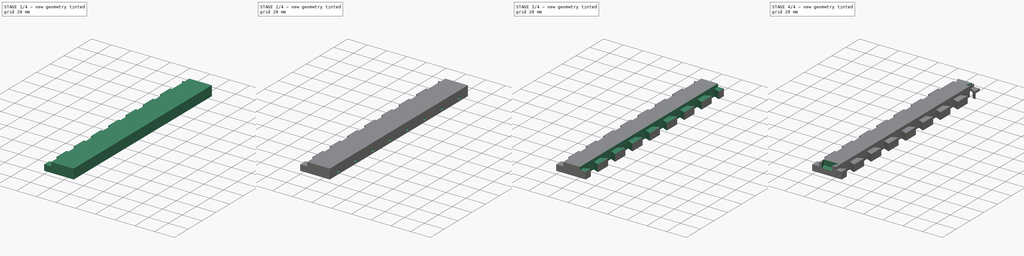
[diagram: build sequence overview — one tinted view per stage of 4, left to right]
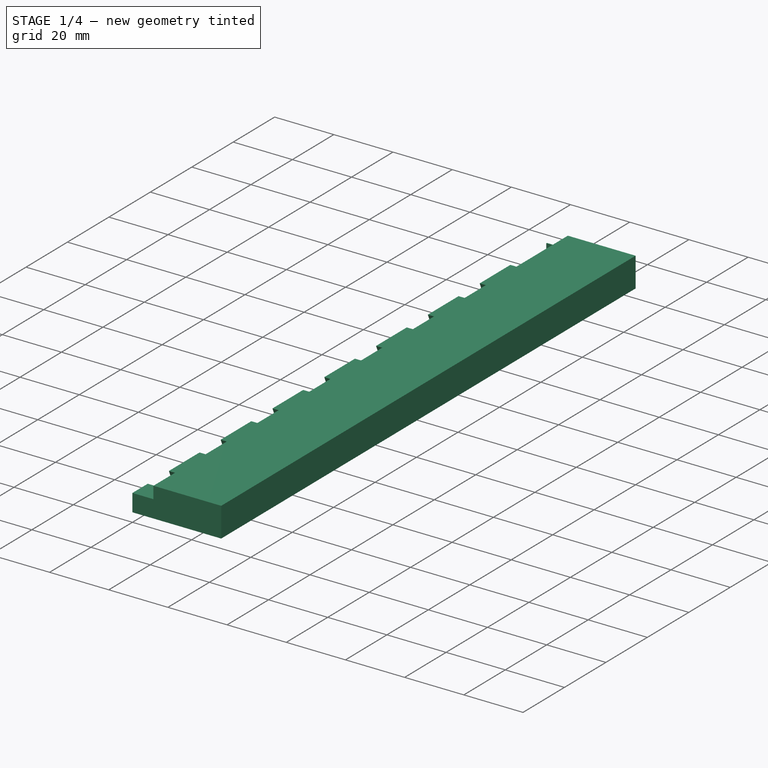
[diagram: stage 1 of 4 — iso view after this stage's code; geometry added in this stage tinted green]
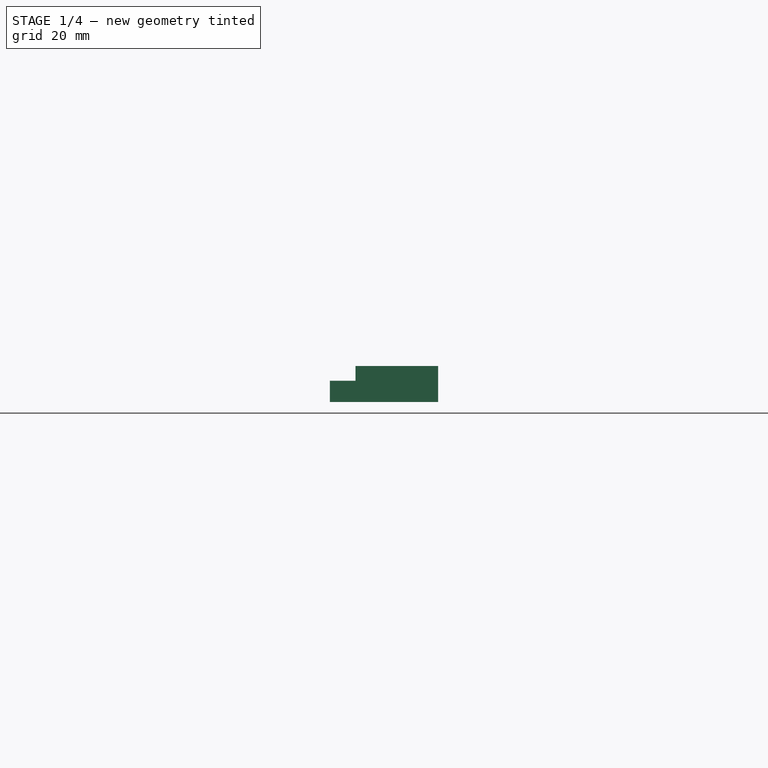
[diagram: stage 1 of 4 — front view after this stage's code; geometry added in this stage tinted green]
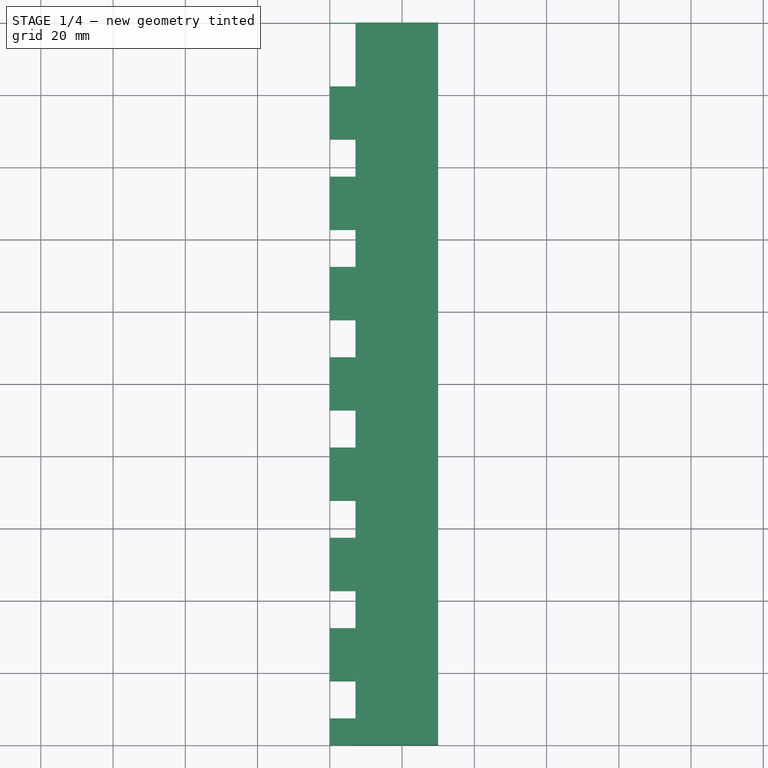
[diagram: stage 1 of 4 — top view after this stage's code; geometry added in this stage tinted green]
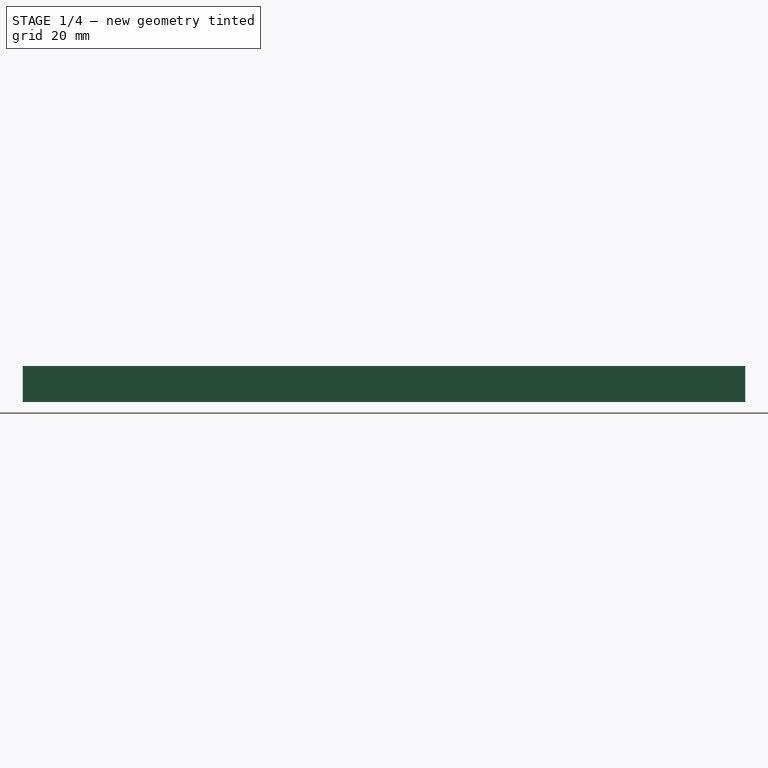
[diagram: stage 1 of 4 — right view after this stage's code; geometry added in this stage tinted green]
FCSTD DOCUMENT  (FreeCAD 0.17R13541 (Git))
Label: base_track_200_v1_1
License: All rights reserved
LicenseURL: http://en.wikipedia.org/wiki/All_rights_reserved
objects: Sketcher::SketchObject×11, PartDesign::Pocket×10, PartDesign::Pad×1, PartDesign::Body×1
note: 34 computed .brp shape members not serialized (recipe doc carries the construction recipe); baked Part::Feature solids carry a one-line shape summary decoded from their .brp

FEATURE [Sketcher::SketchObject] Sketch
  MapMode = 5
  Support = -> [XY_Plane]
  sketch-geometry (4):
    g0: LineSegment StartX=0 StartY=200 StartZ=0 EndX=30 EndY=200 EndZ=0
    g1: LineSegment StartX=30 StartY=200 StartZ=0 EndX=30 EndY=0 EndZ=0
    g2: LineSegment StartX=30 StartY=0 StartZ=0 EndX=0 EndY=0 EndZ=0
    g3: LineSegment StartX=0 StartY=0 StartZ=0 EndX=0 EndY=200 EndZ=0
  constraints (11):
    c: Coincident(g0,g1)
    c: Coincident(g1,g2)
    c: Coincident(g2,g3)
    c: Coincident(g3,g0)
    c: Horizontal(g0)
    c: Horizontal(g2)
    c: Vertical(g1)
    c: Vertical(g3)
    c: Coincident(g2,g-1)
    c: DistanceY(g3,g3) = 200
    c: DistanceX(g2,g2) = 30
FEATURE [PartDesign::Pad] Pad
  Length = 10
  Length2 = 100
  Profile = -> Sketch
  Type = 0
FEATURE [Sketcher::SketchObject] Sketch001
  ExternalGeometry = -> [Pad]
  MapMode = 5
  Placement = pos=(0,0,0) rot=(0.57735,-0.57735,-0.57735;2.0944rad)
  Support = -> [Pad]
  sketch-geometry (32):
    g0: LineSegment StartX=-199.7 StartY=5.9 StartZ=0 EndX=-199.9 EndY=0 EndZ=0
    g1: LineSegment StartX=-199.7 StartY=5.9 StartZ=0 EndX=-182.4 EndY=5.9 EndZ=0
    g2: LineSegment StartX=-182.4 StartY=5.9 StartZ=0 EndX=-179.9 EndY=0 EndZ=0
    g3: LineSegment StartX=-199.9 StartY=0 StartZ=0 EndX=-179.9 EndY=0 EndZ=0
    g4: LineSegment StartX=-167.6 StartY=5.9 StartZ=0 EndX=-170.1 EndY=0 EndZ=0
    g5: LineSegment StartX=-167.6 StartY=5.9 StartZ=0 EndX=-157.4 EndY=5.9 EndZ=0
    g6: LineSegment StartX=-154.9 StartY=0 StartZ=0 EndX=-157.4 EndY=5.9 EndZ=0
    g7: LineSegment StartX=-170.1 StartY=0 StartZ=0 EndX=-154.9 EndY=0 EndZ=0
    g8: LineSegment StartX=-142.6 StartY=5.9 StartZ=0 EndX=-145.1 EndY=0 EndZ=0
    g9: LineSegment StartX=-142.6 StartY=5.9 StartZ=0 EndX=-132.4 EndY=5.9 EndZ=0
    g10: LineSegment StartX=-132.4 StartY=5.9 StartZ=0 EndX=-129.9 EndY=0 EndZ=0
    g11: LineSegment StartX=-145.1 StartY=0 StartZ=0 EndX=-129.9 EndY=0 EndZ=0
    g12: LineSegment StartX=-117.6 StartY=5.9 StartZ=0 EndX=-120.1 EndY=0 EndZ=0
    g13: LineSegment StartX=-117.6 StartY=5.9 StartZ=0 EndX=-107.4 EndY=5.9 EndZ=0
    g14: LineSegment StartX=-104.9 StartY=0 StartZ=0 EndX=-107.4 EndY=5.9 EndZ=0
    g15: LineSegment StartX=-120.1 StartY=0 StartZ=0 EndX=-104.9 EndY=0 EndZ=0
    g16: LineSegment StartX=-92.6 StartY=5.9 StartZ=0 EndX=-95.1 EndY=0 EndZ=0
    g17: LineSegment StartX=-92.6 StartY=5.9 StartZ=0 EndX=-82.4 EndY=5.9 EndZ=0
    g18: LineSegment StartX=-82.4 StartY=5.9 StartZ=0 EndX=-79.9 EndY=0 EndZ=0
    g19: LineSegment StartX=-95.1 StartY=0 StartZ=0 EndX=-79.9 EndY=0 EndZ=0
    g20: LineSegment StartX=-67.6 StartY=5.9 StartZ=0 EndX=-70.1 EndY=0 EndZ=0
    g21: LineSegment StartX=-67.6 StartY=5.9 StartZ=0 EndX=-57.4 EndY=5.9 EndZ=0
    g22: LineSegment StartX=-54.9 StartY=0 StartZ=0 EndX=-57.4 EndY=5.9 EndZ=0
    g23: LineSegment StartX=-70.1 StartY=0 StartZ=0 EndX=-54.9 EndY=0 EndZ=0
    g24: LineSegment StartX=-42.6 StartY=5.9 StartZ=0 EndX=-45.1 EndY=0 EndZ=0
    g25: LineSegment StartX=-42.6 StartY=5.9 StartZ=0 EndX=-32.4 EndY=5.9 EndZ=0
    g26: LineSegment StartX=-32.4 StartY=5.9 StartZ=0 EndX=-29.9 EndY=0 EndZ=0
    g27: LineSegment StartX=-45.1 StartY=0 StartZ=0 EndX=-29.9 EndY=0 EndZ=0
    g28: LineSegment StartX=-17.6 StartY=5.9 StartZ=0 EndX=-20.1 EndY=0 EndZ=0
    g29: LineSegment StartX=-17.6 StartY=5.9 StartZ=0 EndX=-7.4 EndY=5.9 EndZ=0
    g30: LineSegment StartX=-4.9 StartY=0 StartZ=0 EndX=-7.4 EndY=5.9 EndZ=0
    g31: LineSegment StartX=-20.1 StartY=0 StartZ=0 EndX=-4.9 EndY=0 EndZ=0
  constraints (96):
    c: Horizontal(g1)
    c: Horizontal(g5)
    c: Coincident(g1,g2)
    c: Coincident(g0,g1)
    c: Horizontal(g3)
    c: Horizontal(g7)
    c: Coincident(g0,g3)
    c: Coincident(g2,g3)
    c: Coincident(g4,g7)
    c: Coincident(g4,g5)
    c: Coincident(g5,g6)
    c: Coincident(g6,g7)
    c: DistanceY(g-1,g0) = 5.9
    c: DistanceX(g1,g1) = 17.3
    c: DistanceX(g2,g4) = 9.8
    c: DistanceX(g7,g7) = 15.2
    c: DistanceY(g4,g4) = 5.9
    c: DistanceY(g-3,g4) = 5.9
    c: DistanceX(g5,g5) = 10.2
    c: DistanceX(g0,g2) = 20
    c: DistanceX(g1,g4) = 14.8
    c: Horizontal(g9)
    c: Horizontal(g13)
    c: Coincident(g9,g10)
    c: Coincident(g8,g9)
    c: Horizontal(g11)
    c: Horizontal(g15)
    c: Coincident(g8,g11)
    c: Coincident(g10,g11)
    c: Coincident(g12,g15)
    c: Coincident(g12,g13)
    c: Coincident(g14,g15)
    c: DistanceX(g10,g12) = 9.8
    c: Equal(g7,g15) = 15.2
    c: Equal(g4,g12) = 5.9
    c: Equal(g5,g13) = 10.2
    c: DistanceX(g8,g10) = 15.2
    c: Horizontal(g17)
    c: Horizontal(g21)
    c: Coincident(g17,g18)
    c: Coincident(g16,g17)
    c: Horizontal(g19)
    c: Horizontal(g23)
    c: Coincident(g16,g19)
    c: Coincident(g18,g19)
    c: Coincident(g20,g23)
    c: Coincident(g20,g21)
    c: Coincident(g21,g22)
    c: Coincident(g22,g23)
    c: DistanceX(g18,g20) = 9.8
    c: Equal(g7,g23) = 15.2
    c: Equal(g4,g20) = 5.9
    c: Equal(g5,g21) = 10.2
    c: DistanceX(g16,g18) = 15.2
    c: Horizontal(g25)
    c: Horizontal(g29)
    c: Coincident(g25,g26)
    c: Coincident(g24,g25)
    c: Horizontal(g27)
    c: Horizontal(g31)
    c: Coincident(g24,g27)
    c: Coincident(g26,g27)
    c: Coincident(g28,g31)
    c: Coincident(g28,g29)
    c: Coincident(g29,g30)
    c: Coincident(g30,g31)
    c: DistanceX(g26,g28) = 9.8
    c: Equal(g7,g31) = 15.2
    c: Equal(g4,g28) = 5.9
    c: DistanceX(g24,g26) = 15.2
    c: DistanceX(g6,g8) = 9.8
    c: DistanceX(g5,g8) = 14.8
    c: DistanceY(g8,g8) = 5.9
    c: DistanceY(g-3,g8) = 0
    c: Coincident(g13,g14)
    c: DistanceX(g9,g12) = 14.8
    c: DistanceY(g-3,g16) = 0
    c: DistanceX(g14,g16) = 9.8
    c: DistanceY(g16,g16) = 5.9
    c: DistanceX(g13,g16) = 14.8
    c: DistanceY(g-3,g20) = 0
    c: DistanceY(g20,g20) = 5.9
    c: DistanceY(g-3,g24) = 0
    c: DistanceY(g24,g24) = 5.9
    c: DistanceX(g22,g24) = 9.8
    c: DistanceX(g21,g24) = 14.8
    c: DistanceY(g-3,g28) = 0
    c: DistanceX(g25,g28) = 14.8
    c: DistanceX(g29,g-1) = 7.4
    c: DistanceX(g30,g-1) = 4.9
    c: DistanceX(g16,g17) = 10.2
    c: DistanceX(g24,g25) = 10.2
    c: DistanceX(g28,g29) = 10.2
    c: DistanceY(g-3,g0) = 0
    c: DistanceY(g0,g12) = 0
    c: DistanceX(g8,g9) = 10.2
FEATURE [PartDesign::Pocket] Pocket
  BaseFeature = -> Pad
  Length = 7.1
  Length2 = 100
  Profile = -> Sketch001
  Type = 0
FEATURE [Sketcher::SketchObject] Sketch002
  MapMode = 5
  Placement = pos=(0,0,0) rot=(0.57735,-0.57735,-0.57735;2.0944rad)
  Support = -> [Pocket]
  sketch-geometry (4):
    g0: LineSegment StartX=-200 StartY=10 StartZ=0 EndX=0 EndY=10 EndZ=0
    g1: LineSegment StartX=0 StartY=10 StartZ=0 EndX=0 EndY=5.9 EndZ=0
    g2: LineSegment StartX=0 StartY=5.9 StartZ=0 EndX=-200 EndY=5.9 EndZ=0
    g3: LineSegment StartX=-200 StartY=5.9 StartZ=0 EndX=-200 EndY=10 EndZ=0
  constraints (12):
    c: Coincident(g0,g1)
    c: Coincident(g1,g2)
    c: Coincident(g2,g3)
    c: Coincident(g3,g0)
    c: Horizontal(g0)
    c: Horizontal(g2)
    c: Vertical(g1)
    c: Vertical(g3)
    c: DistanceY(g3,g3) = 4.1
    c: DistanceX(g0,g0) = 200
    c: DistanceX(g1,g-1) = 0
    c: DistanceY(g-1,g0) = 10
FEATURE [PartDesign::Pocket] Pocket001
  BaseFeature = -> Pocket
  Length = 7.1
  Length2 = 100
  Profile = -> Sketch002
  Type = 0
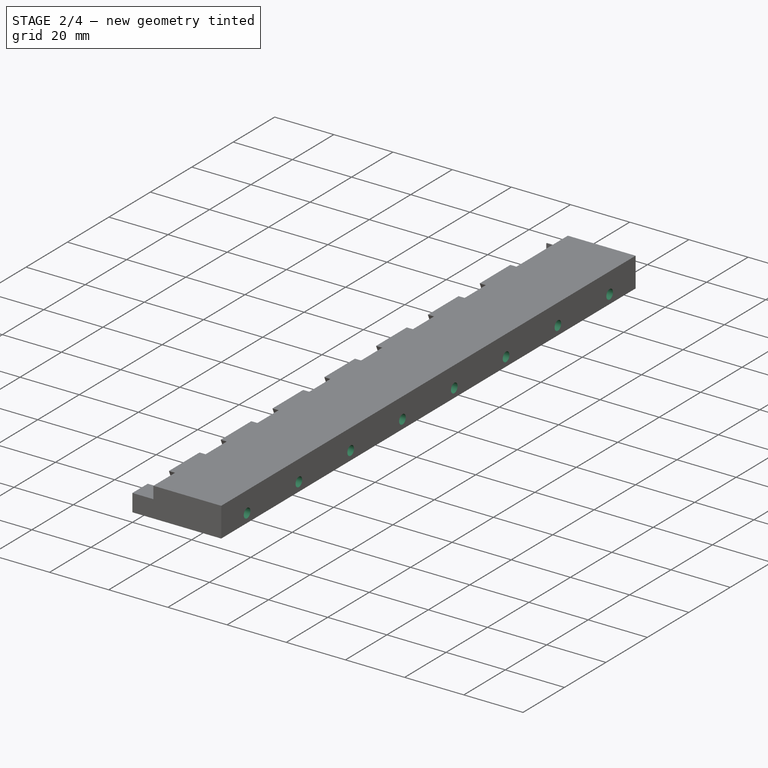
[diagram: stage 2 of 4 — iso view after this stage's code; geometry added in this stage tinted green]
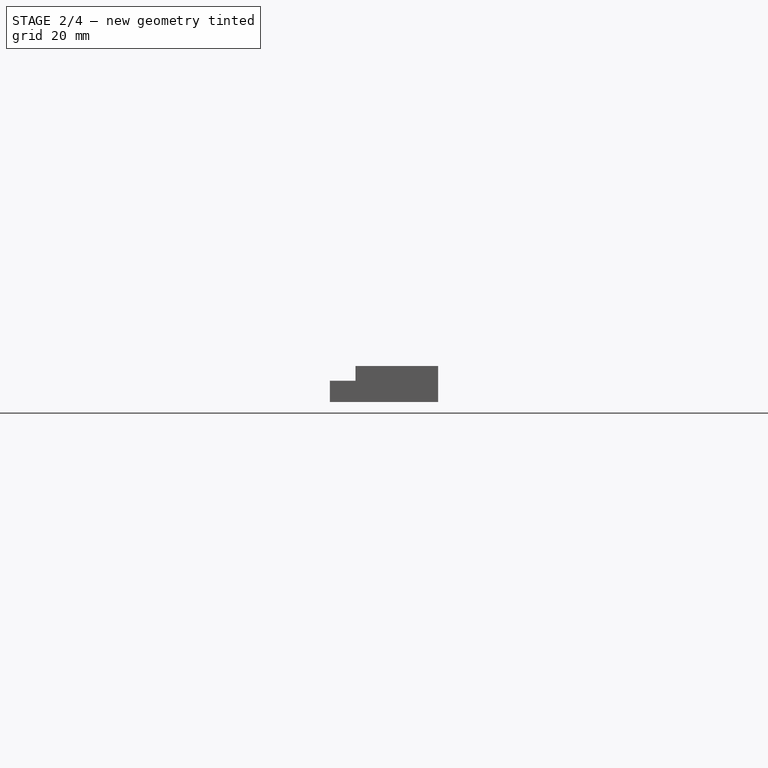
[diagram: stage 2 of 4 — front view after this stage's code; geometry added in this stage tinted green]
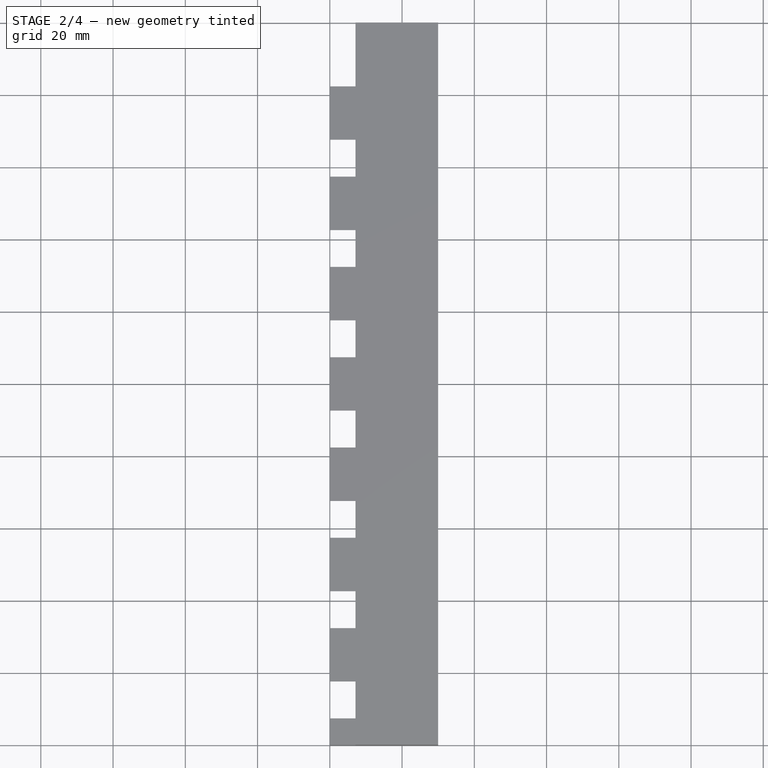
[diagram: stage 2 of 4 — top view after this stage's code; geometry added in this stage tinted green]
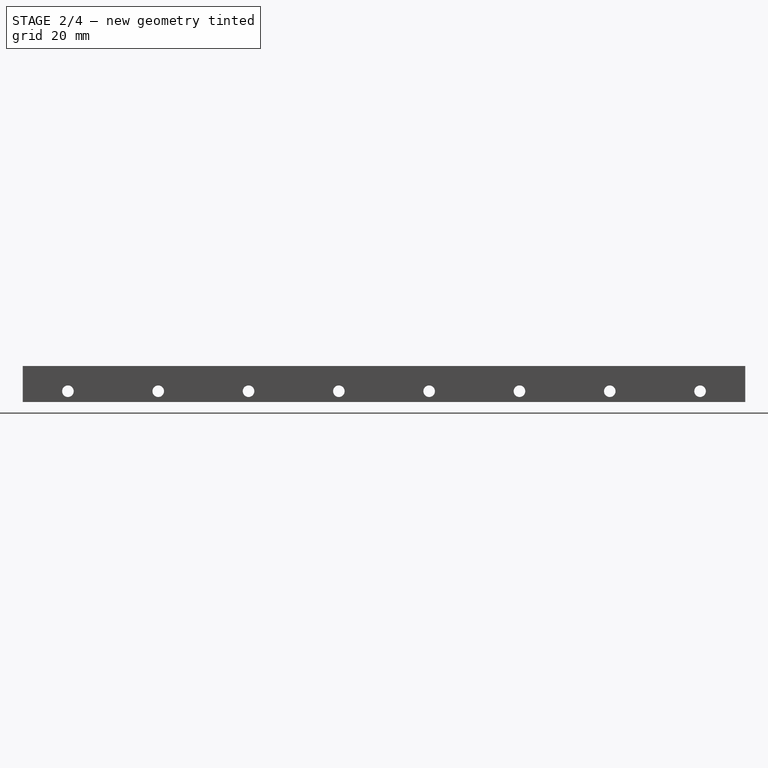
[diagram: stage 2 of 4 — right view after this stage's code; geometry added in this stage tinted green]
FEATURE [Sketcher::SketchObject] Sketch003
  MapMode = 5
  Placement = pos=(7.1,0,0) rot=(0.57735,-0.57735,-0.57735;2.0944rad)
  Support = -> [Pocket001]
  sketch-geometry (8):
    g0: Circle CenterX=-37.5 CenterY=3 CenterZ=0 NormalX=0 NormalY=0 NormalZ=1 AngleXU=0 Radius=1.6
    g1: Circle CenterX=-12.5 CenterY=3 CenterZ=0 NormalX=0 NormalY=0 NormalZ=1 AngleXU=0 Radius=1.6
    g2: Circle CenterX=-62.5 CenterY=3 CenterZ=0 NormalX=0 NormalY=0 NormalZ=1 AngleXU=0 Radius=1.6
    g3: Circle CenterX=-87.5 CenterY=3 CenterZ=0 NormalX=0 NormalY=0 NormalZ=1 AngleXU=0 Radius=1.6
    g4: Circle CenterX=-112.5 CenterY=3 CenterZ=0 NormalX=0 NormalY=0 NormalZ=1 AngleXU=0 Radius=1.6
    g5: Circle CenterX=-137.5 CenterY=3 CenterZ=0 NormalX=0 NormalY=0 NormalZ=1 AngleXU=0 Radius=1.6
    g6: Circle CenterX=-162.5 CenterY=3 CenterZ=0 NormalX=0 NormalY=0 NormalZ=1 AngleXU=0 Radius=1.6
    g7: Circle CenterX=-187.5 CenterY=3 CenterZ=0 NormalX=0 NormalY=0 NormalZ=1 AngleXU=0 Radius=1.6
  constraints (24):
    c: Horizontal(g0,g1)
    c: DistanceY(g-1,g0) = 3
    c: Radius(g0) = 1.6
    c: Equal(g0,g1)
    c: DistanceX(g0,g1) = 25
    c: DistanceX(g1,g-1) = 12.5
    c: Equal(g0,g2) = 1.6
    c: Equal(g0,g3) = 1.6
    c: Equal(g0,g4) = 1.6
    c: Equal(g0,g5) = 1.6
    c: Equal(g0,g6) = 1.6
    c: Equal(g0,g7) = 1.6
    c: Horizontal(g7,g6)
    c: Horizontal(g6,g5)
    c: Horizontal(g5,g4)
    c: Horizontal(g4,g3)
    c: Horizontal(g3,g2)
    c: Horizontal(g2,g1)
    c: DistanceX(g2,g0) = 25
    c: DistanceX(g3,g2) = 25
    c: DistanceX(g4,g3) = 25
    c: DistanceX(g5,g4) = 25
    c: DistanceX(g6,g5) = 25
    c: DistanceX(g7,g6) = 25
FEATURE [PartDesign::Pocket] Pocket002
  BaseFeature = -> Pocket001
  Length = 25
  Length2 = 100
  Profile = -> Sketch003
  Type = 0
FEATURE [Sketcher::SketchObject] Sketch004
  ExternalGeometry = -> [Pocket002]
  MapMode = 5
  Placement = pos=(0,0,0) rot=(1,0,0;3.14159rad)
  Support = -> [Pocket002]
  sketch-geometry (32):
    g0: LineSegment StartX=13.7 StartY=-9.65 StartZ=0 EndX=16.3 EndY=-9.65 EndZ=0
    g1: LineSegment StartX=16.3 StartY=-9.65 StartZ=0 EndX=16.3 EndY=-15.35 EndZ=0
    g2: LineSegment StartX=16.3 StartY=-15.35 StartZ=0 EndX=13.7 EndY=-15.35 EndZ=0
    g3: LineSegment StartX=13.7 StartY=-15.35 StartZ=0 EndX=13.7 EndY=-9.65 EndZ=0
    g4: LineSegment StartX=13.7 StartY=-34.65 StartZ=0 EndX=16.3 EndY=-34.65 EndZ=0
    g5: LineSegment StartX=16.3 StartY=-34.65 StartZ=0 EndX=16.3 EndY=-40.35 EndZ=0
    g6: LineSegment StartX=16.3 StartY=-40.35 StartZ=0 EndX=13.7 EndY=-40.35 EndZ=0
    g7: LineSegment StartX=13.7 StartY=-40.35 StartZ=0 EndX=13.7 EndY=-34.65 EndZ=0
    g8: LineSegment StartX=13.7 StartY=-59.65 StartZ=0 EndX=16.3 EndY=-59.65 EndZ=0
    g9: LineSegment StartX=16.3 StartY=-59.65 StartZ=0 EndX=16.3 EndY=-65.35 EndZ=0
    g10: LineSegment StartX=16.3 StartY=-65.35 StartZ=0 EndX=13.7 EndY=-65.35 EndZ=0
    g11: LineSegment StartX=13.7 StartY=-65.35 StartZ=0 EndX=13.7 EndY=-59.65 EndZ=0
    g12: LineSegment StartX=13.7 StartY=-84.65 StartZ=0 EndX=16.3 EndY=-84.65 EndZ=0
    g13: LineSegment StartX=16.3 StartY=-84.65 StartZ=0 EndX=16.3 EndY=-90.35 EndZ=0
    g14: LineSegment StartX=16.3 StartY=-90.35 StartZ=0 EndX=13.7 EndY=-90.35 EndZ=0
    g15: LineSegment StartX=13.7 StartY=-90.35 StartZ=0 EndX=13.7 EndY=-84.65 EndZ=0
    g16: LineSegment StartX=13.7 StartY=-109.65 StartZ=0 EndX=16.3 EndY=-109.65 EndZ=0
    g17: LineSegment StartX=16.3 StartY=-109.65 StartZ=0 EndX=16.3 EndY=-115.35 EndZ=0
    g18: LineSegment StartX=16.3 StartY=-115.35 StartZ=0 EndX=13.7 EndY=-115.35 EndZ=0
    g19: LineSegment StartX=13.7 StartY=-115.35 StartZ=0 EndX=13.7 EndY=-109.65 EndZ=0
    g20: LineSegment StartX=13.7 StartY=-134.65 StartZ=0 EndX=16.3 EndY=-134.65 EndZ=0
    g21: LineSegment StartX=16.3 StartY=-134.65 StartZ=0 EndX=16.3 EndY=-140.35 EndZ=0
    g22: LineSegment StartX=16.3 StartY=-140.35 StartZ=0 EndX=13.7 EndY=-140.35 EndZ=0
    g23: LineSegment StartX=13.7 StartY=-140.35 StartZ=0 EndX=13.7 EndY=-134.65 EndZ=0
    g24: LineSegment StartX=13.7 StartY=-159.65 StartZ=0 EndX=16.3 EndY=-159.65 EndZ=0
    g25: LineSegment StartX=16.3 StartY=-159.65 StartZ=0 EndX=16.3 EndY=-165.35 EndZ=0
    g26: LineSegment StartX=16.3 StartY=-165.35 StartZ=0 EndX=13.7 EndY=-165.35 EndZ=0
    g27: LineSegment StartX=13.7 StartY=-165.35 StartZ=0 EndX=13.7 EndY=-159.65 EndZ=0
    g28: LineSegment StartX=13.7 StartY=-184.65 StartZ=0 EndX=16.3 EndY=-184.65 EndZ=0
    g29: LineSegment StartX=16.3 StartY=-184.65 StartZ=0 EndX=16.3 EndY=-190.35 EndZ=0
    g30: LineSegment StartX=16.3 StartY=-190.35 StartZ=0 EndX=13.7 EndY=-190.35 EndZ=0
    g31: LineSegment StartX=13.7 StartY=-190.35 StartZ=0 EndX=13.7 EndY=-184.65 EndZ=0
  constraints (96):
    c: Coincident(g0,g1)
    c: Coincident(g1,g2)
    c: Coincident(g2,g3)
    c: Coincident(g3,g0)
    c: Horizontal(g0)
    c: Horizontal(g2)
    c: Vertical(g1)
    c: Vertical(g3)
    c: Coincident(g4,g5)
    c: Coincident(g5,g6)
    c: Coincident(g6,g7)
    c: Coincident(g7,g4)
    c: Horizontal(g4)
    c: Horizontal(g6)
    c: Vertical(g5)
    c: Vertical(g7)
    c: Equal(g0,g4)
    c: DistanceX(g0,g0) = 2.6
    c: Equal(g3,g7)
    c: DistanceY(g3,g3) = 5.7
    c: DistanceY(g0,g-1) = 9.65
    c: DistanceX(g-1,g0) = 13.7
    c: DistanceX(g-1,g4) = 13.7
    c: DistanceY(g4,g2) = 19.3
    c: Coincident(g8,g9)
    c: Coincident(g9,g10)
    c: Coincident(g10,g11)
    c: Coincident(g11,g8)
    c: Horizontal(g8)
    c: Horizontal(g10)
    c: Vertical(g9)
    c: Vertical(g11)
    c: Coincident(g12,g13)
    c: Coincident(g13,g14)
    c: Coincident(g14,g15)
    c: Coincident(g15,g12)
    c: Horizontal(g12)
    c: Horizontal(g14)
    c: Vertical(g13)
    c: Vertical(g15)
    c: Equal(g8,g12)
    c: Equal(g0,g8) = 2.6
    c: Equal(g11,g15)
    c: Equal(g3,g11) = 5.7
    c: DistanceY(g12,g10) = 19.3
    c: DistanceY(g8,g6) = 19.3
    c: DistanceX(g-1,g8) = 13.7
    c: DistanceX(g-1,g12) = 13.7
    c: Coincident(g16,g17)
    c: Coincident(g17,g18)
    c: Coincident(g18,g19)
    c: Coincident(g19,g16)
    c: Horizontal(g16)
    c: Horizontal(g18)
    c: Vertical(g17)
    c: Vertical(g19)
    c: Coincident(g20,g21)
    c: Coincident(g21,g22)
    c: Coincident(g22,g23)
    c: Coincident(g23,g20)
    c: Horizontal(g20)
    c: Horizontal(g22)
    c: Vertical(g21)
    c: Vertical(g23)
    c: Equal(g16,g20)
    c: Equal(g0,g16) = 2.6
    c: Equal(g19,g23)
    c: Equal(g3,g19) = 5.7
    c: DistanceY(g20,g18) = 19.3
    c: Coincident(g24,g25)
    c: Coincident(g25,g26)
    c: Coincident(g26,g27)
    c: Coincident(g27,g24)
    c: Horizontal(g24)
    c: Horizontal(g26)
    c: Vertical(g25)
    c: Vertical(g27)
    c: Coincident(g28,g29)
    c: Coincident(g29,g30)
    c: Coincident(g30,g31)
    c: Coincident(g31,g28)
    c: Horizontal(g28)
    c: Horizontal(g30)
    c: Vertical(g29)
    c: Vertical(g31)
    c: Equal(g24,g28)
    c: Equal(g16,g24) = 2.6
    c: Equal(g27,g31)
    c: Equal(g19,g27) = 5.7
    c: DistanceY(g28,g26) = 19.3
    c: DistanceY(g24,g22) = 19.3
    c: DistanceY(g16,g14) = 19.3
    c: DistanceX(g-1,g16) = 13.7
    c: DistanceX(g-1,g20) = 13.7
    c: DistanceX(g-1,g24) = 13.7
    c: DistanceX(g-1,g28) = 13.7
FEATURE [PartDesign::Pocket] Pocket003
  BaseFeature = -> Pocket002
  Length = 6.15
  Length2 = 100
  Profile = -> Sketch004
  Type = 0
FEATURE [Sketcher::SketchObject] Sketch006
  MapMode = 5
  Placement = pos=(0,4.15414,-1.76023) rot=(0,0.833711,0.552201;3.14159rad)
  sketch-geometry (4):
    g0: LineSegment StartX=0 StartY=10 StartZ=0 EndX=200 EndY=10 EndZ=0
    g1: LineSegment StartX=200 StartY=10 StartZ=0 EndX=200 EndY=7 EndZ=0
    g2: LineSegment StartX=200 StartY=7 StartZ=0 EndX=0 EndY=7 EndZ=0
    g3: LineSegment StartX=0 StartY=7 StartZ=0 EndX=0 EndY=10 EndZ=0
  constraints (12):
    c: Coincident(g0,g1)
    c: Coincident(g1,g2)
    c: Coincident(g2,g3)
    c: Coincident(g3,g0)
    c: Horizontal(g0)
    c: Horizontal(g2)
    c: Vertical(g1)
    c: Vertical(g3)
    c: DistanceX(g0,g0) = 200
    c: DistanceX(g-1,g2) = 0
    c: DistanceY(g1,g1) = 3
    c: DistanceY(g-1,g0) = 10
FEATURE [PartDesign::Pocket] Pocket005
  BaseFeature = -> Pocket003
  Length = 5.9
  Length2 = 100
  Profile = -> Sketch006
  Type = 0
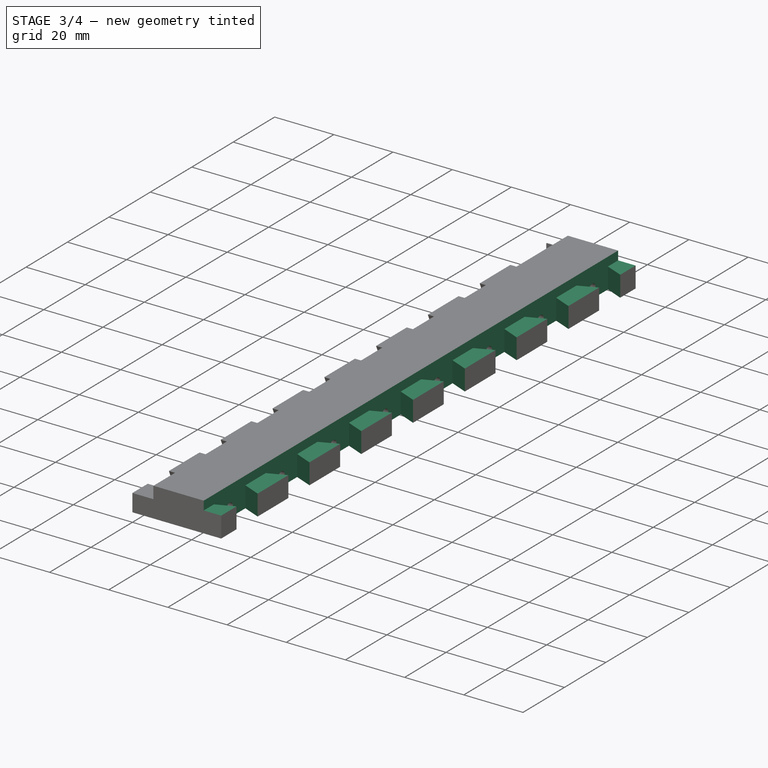
[diagram: stage 3 of 4 — iso view after this stage's code; geometry added in this stage tinted green]
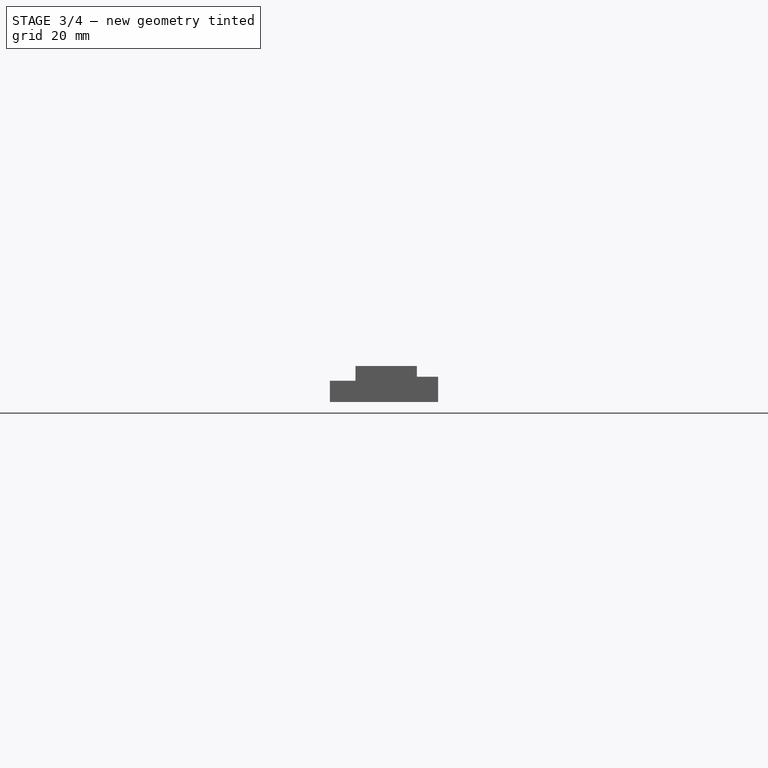
[diagram: stage 3 of 4 — front view after this stage's code; geometry added in this stage tinted green]
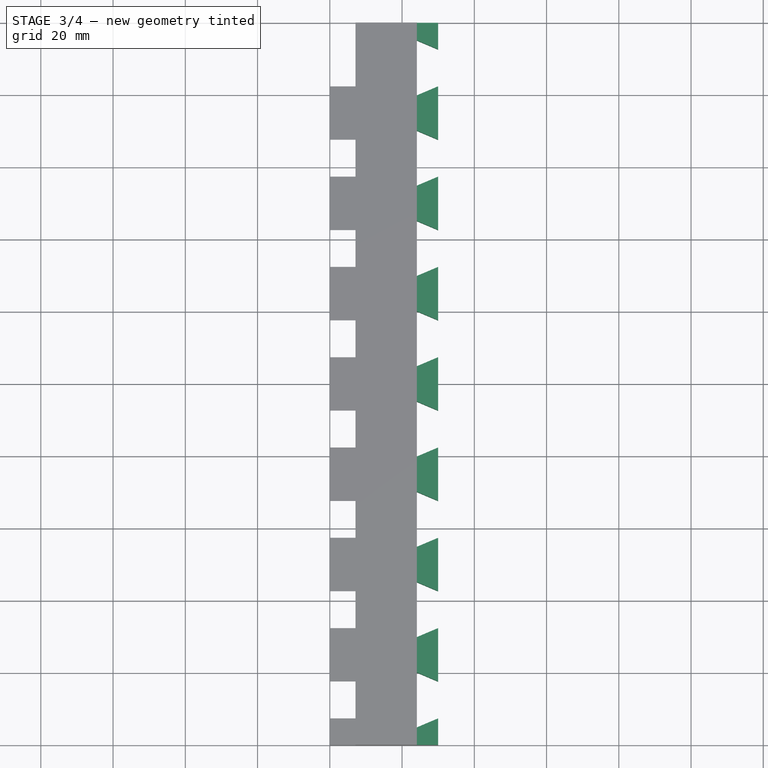
[diagram: stage 3 of 4 — top view after this stage's code; geometry added in this stage tinted green]
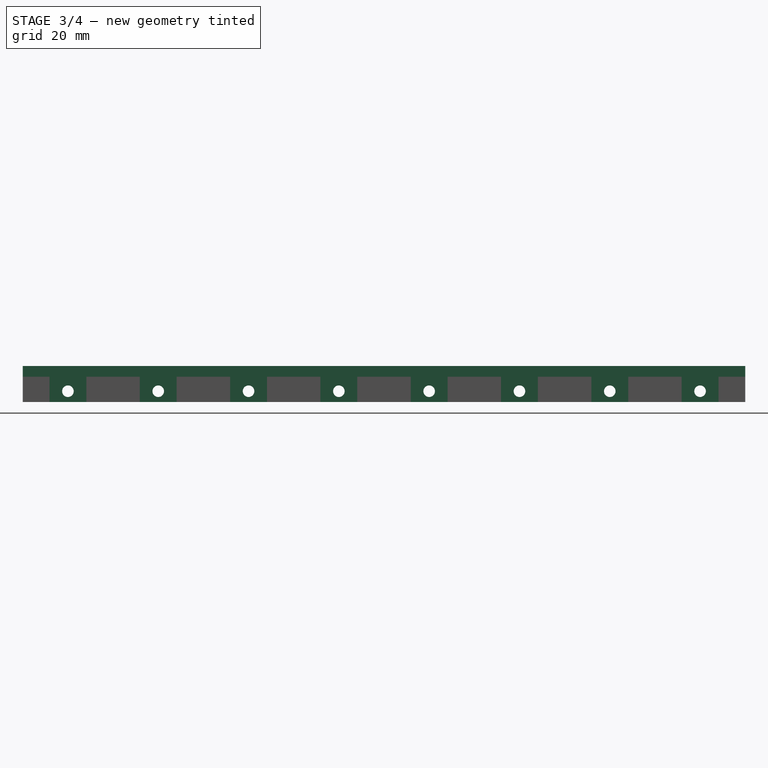
[diagram: stage 3 of 4 — right view after this stage's code; geometry added in this stage tinted green]
FEATURE [Sketcher::SketchObject] Sketch007
  MapMode = 5
  Placement = pos=(0,0,10) rot=(0,0,1;0rad)
  Support = -> [Pocket005]
  sketch-geometry (32):
    g0: LineSegment StartX=24.1 StartY=20.1 StartZ=0 EndX=24.1 EndY=4.9 EndZ=0
    g1: LineSegment StartX=30 StartY=17.6 StartZ=0 EndX=30 EndY=7.4 EndZ=0
    g2: LineSegment StartX=24.1 StartY=20.1 StartZ=0 EndX=30 EndY=17.6 EndZ=0
    g3: LineSegment StartX=24.1 StartY=4.9 StartZ=0 EndX=30 EndY=7.4 EndZ=0
    g4: LineSegment StartX=24.1 StartY=45.1 StartZ=0 EndX=24.1 EndY=29.9 EndZ=0
    g5: LineSegment StartX=30 StartY=42.6 StartZ=0 EndX=30 EndY=32.4 EndZ=0
    g6: LineSegment StartX=24.1 StartY=45.1 StartZ=0 EndX=30 EndY=42.6 EndZ=0
    g7: LineSegment StartX=24.1 StartY=29.9 StartZ=0 EndX=30 EndY=32.4 EndZ=0
    g8: LineSegment StartX=24.1 StartY=70.1 StartZ=0 EndX=24.1 EndY=54.9 EndZ=0
    g9: LineSegment StartX=30 StartY=67.6 StartZ=0 EndX=30 EndY=57.4 EndZ=0
    g10: LineSegment StartX=24.1 StartY=70.1 StartZ=0 EndX=30 EndY=67.6 EndZ=0
    g11: LineSegment StartX=24.1 StartY=54.9 StartZ=0 EndX=30 EndY=57.4 EndZ=0
    g12: LineSegment StartX=24.1 StartY=95.1 StartZ=0 EndX=24.1 EndY=79.9 EndZ=0
    g13: LineSegment StartX=30 StartY=92.6 StartZ=0 EndX=30 EndY=82.4 EndZ=0
    g14: LineSegment StartX=24.1 StartY=95.1 StartZ=0 EndX=30 EndY=92.6 EndZ=0
    g15: LineSegment StartX=24.1 StartY=79.9 StartZ=0 EndX=30 EndY=82.4 EndZ=0
    g16: LineSegment StartX=24.1 StartY=120.1 StartZ=0 EndX=24.1 EndY=104.9 EndZ=0
    g17: LineSegment StartX=30 StartY=117.6 StartZ=0 EndX=30 EndY=107.4 EndZ=0
    g18: LineSegment StartX=24.1 StartY=120.1 StartZ=0 EndX=30 EndY=117.6 EndZ=0
    g19: LineSegment StartX=24.1 StartY=104.9 StartZ=0 EndX=30 EndY=107.4 EndZ=0
    g20: LineSegment StartX=24.1 StartY=145.1 StartZ=0 EndX=24.1 EndY=129.9 EndZ=0
    g21: LineSegment StartX=30 StartY=142.6 StartZ=0 EndX=30 EndY=132.4 EndZ=0
    g22: LineSegment StartX=24.1 StartY=145.1 StartZ=0 EndX=30 EndY=142.6 EndZ=0
    g23: LineSegment StartX=24.1 StartY=129.9 StartZ=0 EndX=30 EndY=132.4 EndZ=0
    g24: LineSegment StartX=24.1 StartY=170.1 StartZ=0 EndX=24.1 EndY=154.9 EndZ=0
    g25: LineSegment StartX=30 StartY=167.6 StartZ=0 EndX=30 EndY=157.4 EndZ=0
    g26: LineSegment StartX=24.1 StartY=170.1 StartZ=0 EndX=30 EndY=167.6 EndZ=0
    g27: LineSegment StartX=24.1 StartY=154.9 StartZ=0 EndX=30 EndY=157.4 EndZ=0
    g28: LineSegment StartX=24.1 StartY=195.1 StartZ=0 EndX=24.1 EndY=179.9 EndZ=0
    g29: LineSegment StartX=30 StartY=192.6 StartZ=0 EndX=30 EndY=182.4 EndZ=0
    g30: LineSegment StartX=24.1 StartY=195.1 StartZ=0 EndX=30 EndY=192.6 EndZ=0
    g31: LineSegment StartX=24.1 StartY=179.9 StartZ=0 EndX=30 EndY=182.4 EndZ=0
  constraints (96):
    c: Vertical(g0)
    c: Vertical(g1)
    c: Coincident(g0,g2)
    c: Coincident(g1,g2)
    c: Coincident(g0,g3)
    c: Coincident(g1,g3)
    c: DistanceY(g0,g0) = 15.2
    c: DistanceY(g1,g1) = 10.2
    c: Equal(g2,g3)
    c: DistanceX(g-1,g0) = 24.1
    c: DistanceX(g0,g1) = 5.9
    c: DistanceY(g-1,g0) = 4.9
    c: Vertical(g4)
    c: Vertical(g5)
    c: Coincident(g4,g6)
    c: Coincident(g5,g6)
    c: Coincident(g4,g7)
    c: Coincident(g5,g7)
    c: Equal(g0,g4) = 15.2
    c: Equal(g1,g5) = 10.2
    c: Equal(g6,g7)
    c: DistanceX(g4,g5) = 5.9
    c: DistanceY(g0,g4) = 9.8
    c: DistanceX(g-1,g4) = 24.1
    c: Vertical(g8)
    c: Vertical(g9)
    c: Coincident(g8,g10)
    c: Coincident(g9,g10)
    c: Coincident(g8,g11)
    c: Coincident(g9,g11)
    c: Equal(g0,g8) = 15.2
    c: Equal(g1,g9) = 10.2
    c: Equal(g10,g11)
    c: DistanceX(g8,g9) = 5.9
    c: Vertical(g12)
    c: Vertical(g13)
    c: Coincident(g12,g14)
    c: Coincident(g13,g14)
    c: Coincident(g12,g15)
    c: Coincident(g13,g15)
    c: Equal(g8,g12) = 15.2
    c: Equal(g9,g13) = 10.2
    c: Equal(g14,g15)
    c: DistanceX(g12,g13) = 5.9
    c: DistanceY(g8,g12) = 9.8
    c: DistanceX(g-1,g8) = 24.1
    c: DistanceY(g4,g8) = 9.8
    c: DistanceX(g-1,g12) = 24.1
    c: Vertical(g16)
    c: Vertical(g17)
    c: Coincident(g16,g18)
    c: Coincident(g17,g18)
    c: Coincident(g16,g19)
    c: Coincident(g17,g19)
    c: Equal(g0,g16) = 15.2
    c: Equal(g1,g17) = 10.2
    c: Equal(g18,g19)
    c: DistanceX(g16,g17) = 5.9
    c: Vertical(g20)
    c: Vertical(g21)
    c: Coincident(g20,g22)
    c: Coincident(g21,g22)
    c: Coincident(g20,g23)
    c: Coincident(g21,g23)
    c: Equal(g16,g20) = 15.2
    c: Equal(g17,g21) = 10.2
    c: Equal(g22,g23)
    c: DistanceX(g20,g21) = 5.9
    c: DistanceY(g16,g20) = 9.8
    c: Vertical(g24)
    c: Vertical(g25)
    c: Coincident(g24,g26)
    c: Coincident(g25,g26)
    c: Coincident(g24,g27)
    c: Coincident(g25,g27)
    c: Equal(g16,g24) = 15.2
    c: Equal(g17,g25) = 10.2
    c: Equal(g26,g27)
    c: DistanceX(g24,g25) = 5.9
    c: Vertical(g28)
    c: Vertical(g29)
    c: Coincident(g28,g30)
    c: Coincident(g29,g30)
    c: Coincident(g28,g31)
    c: Coincident(g29,g31)
    c: Equal(g24,g28) = 15.2
    c: Equal(g25,g29) = 10.2
    c: Equal(g30,g31)
    c: DistanceX(g28,g29) = 5.9
    c: DistanceY(g24,g28) = 9.8
    c: DistanceY(g20,g24) = 9.8
    c: DistanceY(g12,g16) = 9.8
    c: DistanceX(g-1,g16) = 24.1
    c: DistanceX(g-1,g20) = 24.1
    c: DistanceX(g-1,g24) = 24.1
    c: DistanceX(g-1,g28) = 24.1
FEATURE [PartDesign::Pocket] Pocket006
  BaseFeature = -> Pocket005
  Length = 10
  Length2 = 100
  Profile = -> Sketch007
  Type = 0
FEATURE [Sketcher::SketchObject] Sketch008
  MapMode = 5
  Placement = pos=(0,0,10) rot=(0,0,1;0rad)
  Support = -> [Pocket006]
  sketch-geometry (4):
    g0: LineSegment StartX=24.1 StartY=200 StartZ=0 EndX=30 EndY=200 EndZ=0
    g1: LineSegment StartX=30 StartY=200 StartZ=0 EndX=30 EndY=0 EndZ=0
    g2: LineSegment StartX=30 StartY=0 StartZ=0 EndX=24.1 EndY=0 EndZ=0
    g3: LineSegment StartX=24.1 StartY=0 StartZ=0 EndX=24.1 EndY=200 EndZ=0
  constraints (12):
    c: Coincident(g0,g1)
    c: Coincident(g1,g2)
    c: Coincident(g2,g3)
    c: Coincident(g3,g0)
    c: Horizontal(g0)
    c: Horizontal(g2)
    c: Vertical(g1)
    c: Vertical(g3)
    c: DistanceX(g2,g2) = 5.9
    c: DistanceY(g1,g1) = 200
    c: Tangent(g2,g-1) = 1.5708
    c: DistanceX(g-1,g2) = 24.1
FEATURE [PartDesign::Pocket] Pocket007
  BaseFeature = -> Pocket006
  Length = 3
  Length2 = 100
  Profile = -> Sketch008
  Type = 0
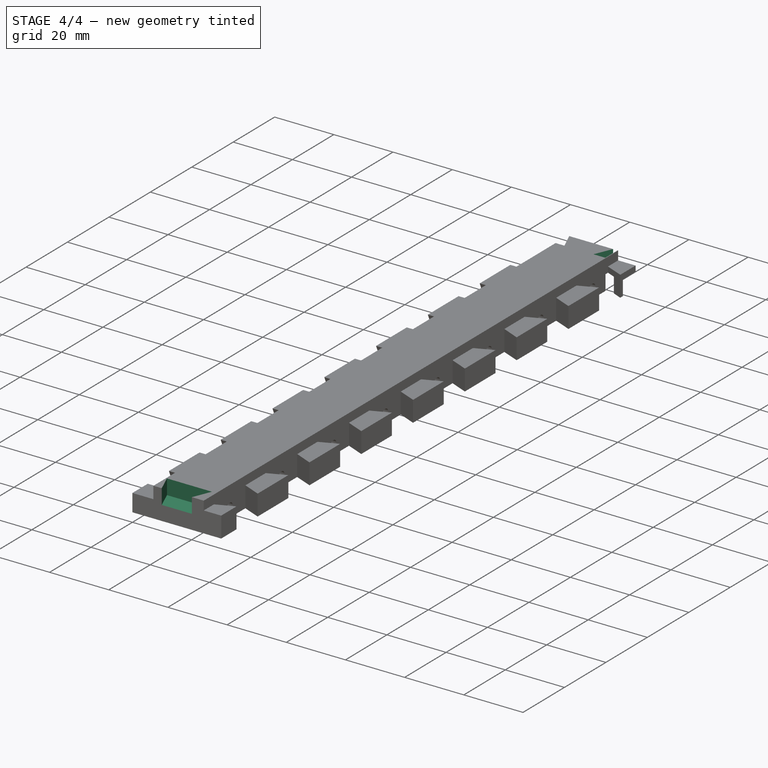
[diagram: stage 4 of 4 — iso view after this stage's code; geometry added in this stage tinted green]
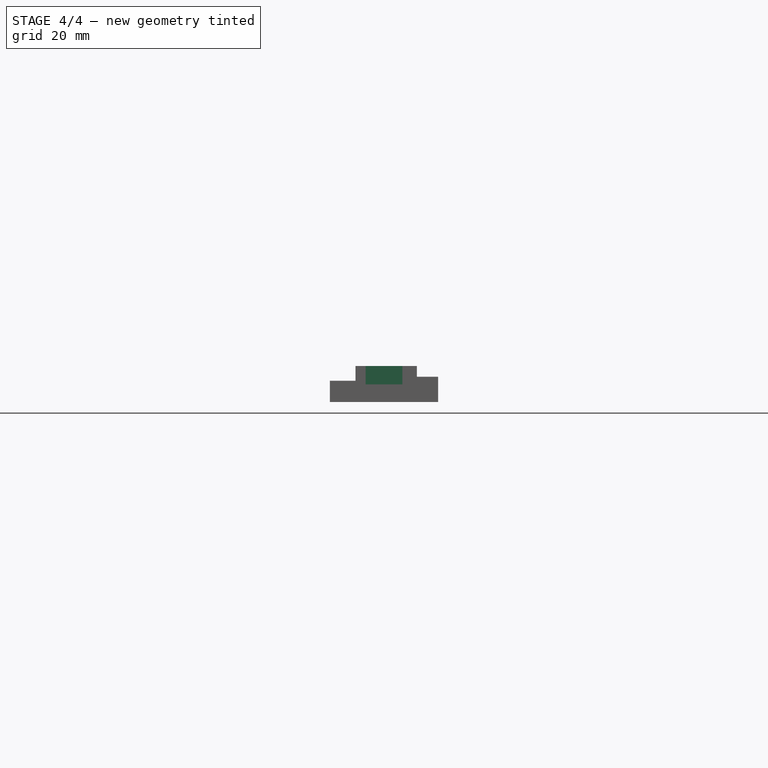
[diagram: stage 4 of 4 — front view after this stage's code; geometry added in this stage tinted green]
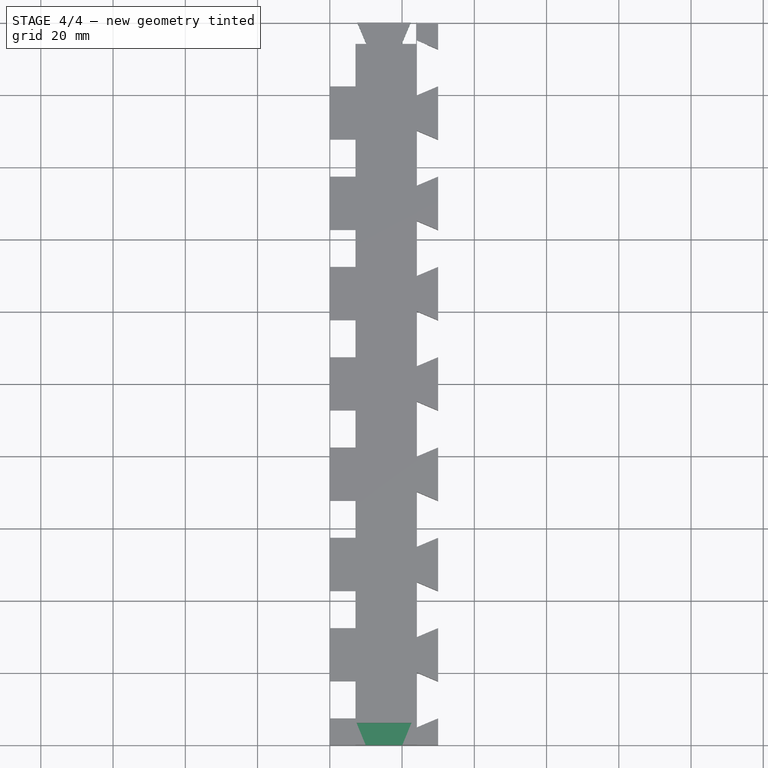
[diagram: stage 4 of 4 — top view after this stage's code; geometry added in this stage tinted green]
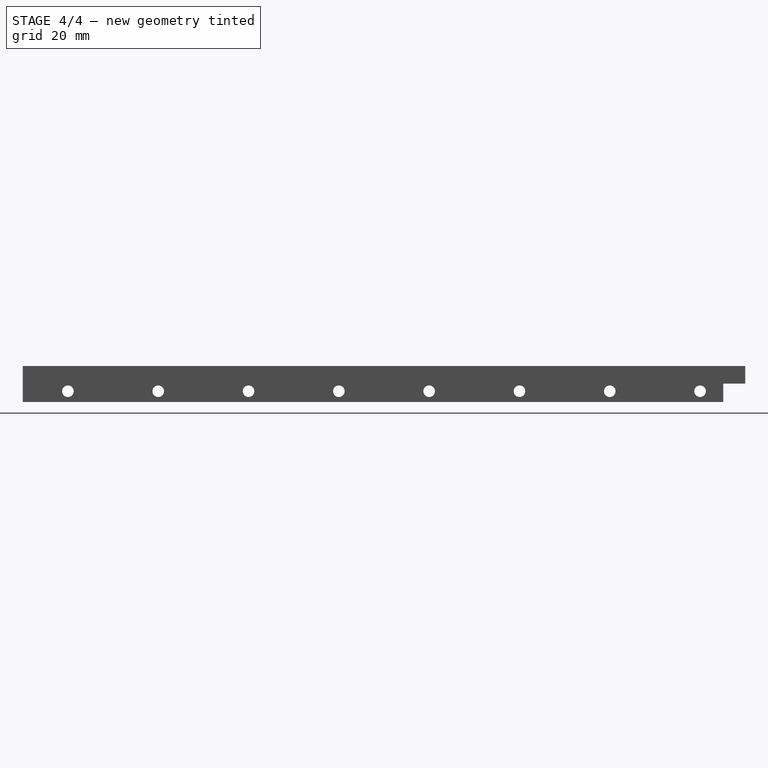
[diagram: stage 4 of 4 — right view after this stage's code; geometry added in this stage tinted green]
FEATURE [Sketcher::SketchObject] Sketch009
  MapMode = 5
  Placement = pos=(0,0,10) rot=(0,0,1;0rad)
  Support = -> [Pocket007]
  sketch-geometry (4):
    g0: LineSegment StartX=7.4 StartY=6.1 StartZ=0 EndX=22.6 EndY=6.1 EndZ=0
    g1: LineSegment StartX=9.9 StartY=0 StartZ=0 EndX=20.1 EndY=0 EndZ=0
    g2: LineSegment StartX=7.4 StartY=6.1 StartZ=0 EndX=9.9 EndY=0 EndZ=0
    g3: LineSegment StartX=22.6 StartY=6.1 StartZ=0 EndX=20.1 EndY=0 EndZ=0
  constraints (12):
    c: Horizontal(g0)
    c: Coincident(g0,g2)
    c: Horizontal(g1)
    c: Coincident(g1,g2)
    c: Coincident(g1,g3)
    c: Coincident(g0,g3)
    c: DistanceX(g0,g0) = 15.2
    c: DistanceX(g1,g1) = 10.2
    c: Tangent(g1,g-1) = -1.5708
    c: DistanceY(g1,g0) = 6.1
    c: DistanceX(g-1,g1) = 9.9
    c: DistanceX(g-1,g0) = 7.4
FEATURE [PartDesign::Pocket] Pocket008
  BaseFeature = -> Pocket007
  Length = 5.1
  Length2 = 100
  Profile = -> Sketch009
  Type = 0
FEATURE [Sketcher::SketchObject] Sketch010
  MapMode = 5
  Placement = pos=(0,0,0) rot=(1,0,0;3.14159rad)
  Support = -> [Pocket008]
  sketch-geometry (4):
    g0: LineSegment StartX=0 StartY=-193.9 StartZ=0 EndX=30 EndY=-193.9 EndZ=0
    g1: LineSegment StartX=30 StartY=-193.9 StartZ=0 EndX=30 EndY=-200 EndZ=0
    g2: LineSegment StartX=30 StartY=-200 StartZ=0 EndX=0 EndY=-200 EndZ=0
    g3: LineSegment StartX=0 StartY=-200 StartZ=0 EndX=0 EndY=-193.9 EndZ=0
  constraints (12):
    c: Coincident(g0,g1)
    c: Coincident(g1,g2)
    c: Coincident(g2,g3)
    c: Coincident(g3,g0)
    c: Horizontal(g0)
    c: Horizontal(g2)
    c: Vertical(g1)
    c: Vertical(g3)
    c: DistanceY(g3,g3) = 6.1
    c: DistanceX(g2,g2) = 30
    c: DistanceX(g-1,g0) = 30
    c: DistanceY(g2,g-1) = 200
FEATURE [PartDesign::Pocket] Pocket009
  BaseFeature = -> Pocket008
  Length = 5.1
  Length2 = 100
  Profile = -> Sketch010
  Type = 0
FEATURE [Sketcher::SketchObject] Sketch011
  MapMode = 5
  Placement = pos=(0,0,10) rot=(0,0,1;0rad)
  Support = -> [Pocket009]
  sketch-geometry (8):
    g0: LineSegment StartX=7.6 StartY=200 StartZ=0 EndX=10.1 EndY=194.1 EndZ=0
    g1: LineSegment StartX=10.1 StartY=194.1 StartZ=0 EndX=0 EndY=194.1 EndZ=0
    g2: LineSegment StartX=0 StartY=200 StartZ=0 EndX=0 EndY=194.1 EndZ=0
    g3: LineSegment StartX=0 StartY=200 StartZ=0 EndX=7.6 EndY=200 EndZ=0
    g4: LineSegment StartX=22.4 StartY=200 StartZ=0 EndX=19.9 EndY=194.1 EndZ=0
    g5: LineSegment StartX=19.9 StartY=194.1 StartZ=0 EndX=23.9 EndY=194.1 EndZ=0
    g6: LineSegment StartX=22.4 StartY=200 StartZ=0 EndX=23.9 EndY=200 EndZ=0
    g7: LineSegment StartX=23.9 StartY=200 StartZ=0 EndX=23.9 EndY=194.1 EndZ=0
  constraints (24):
    c: Horizontal(g1)
    c: Horizontal(g3)
    c: Vertical(g2)
    c: Coincident(g1,g2)
    c: Coincident(g2,g3)
    c: Coincident(g0,g1)
    c: Coincident(g0,g3)
    c: DistanceY(g2,g2) = 5.9
    c: DistanceX(g-1,g0) = 10.1
    c: DistanceX(g-1,g0) = 7.6
    c: DistanceX(g3,g3) = 7.6
    c: DistanceY(g-1,g2) = 200
    c: Horizontal(g6)
    c: Horizontal(g5)
    c: Vertical(g7)
    c: Coincident(g6,g7)
    c: Coincident(g5,g7)
    c: Coincident(g4,g6)
    c: Coincident(g4,g5)
    c: DistanceY(g7,g7) = 5.9
    c: DistanceX(g0,g4) = 9.8
    c: DistanceX(g0,g4) = 14.8
    c: DistanceY(g-1,g4) = 200
    c: DistanceX(g5,g5) = 4
FEATURE [PartDesign::Pocket] Pocket010
  BaseFeature = -> Pocket009
  Length = 5
  Length2 = 100
  Profile = -> Sketch011
  Type = 0
FEATURE [PartDesign::Body] Body
  Group = -> [Sketch,Pad,Sketch001,Pocket,Sketch002,Pocket001,Sketch003,Pocket002,Sketch004,Pocket003,Sketch006,Pocket005,Sketch007,Pocket006,Sketch008,Pocket007,Sketch009,Pocket008,Sketch010,Pocket009,Sketch011,Pocket010]
  Origin = -> Origin
  Tip = -> Pocket010
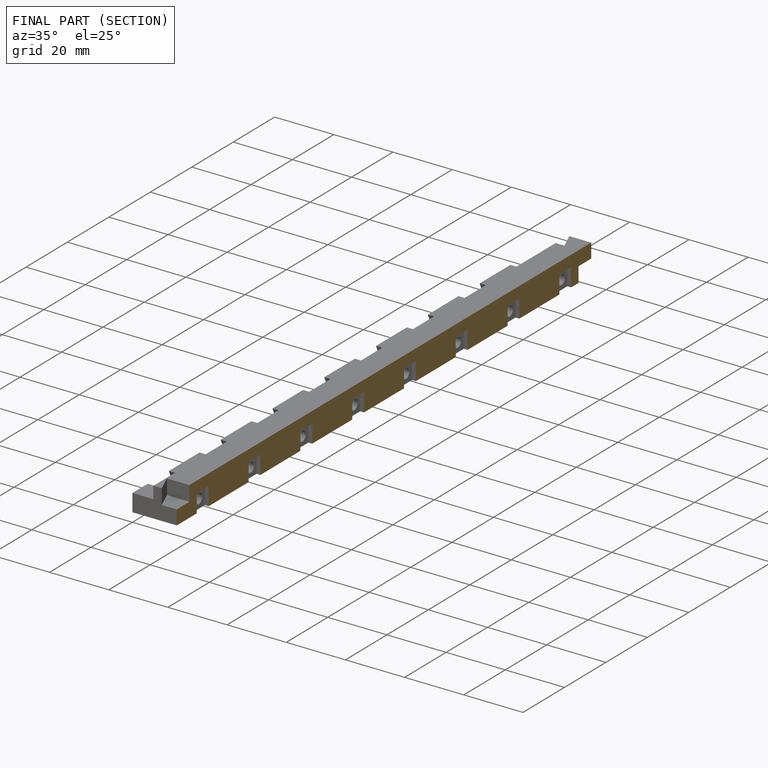
[diagram: finished part — half-section view (interior)]
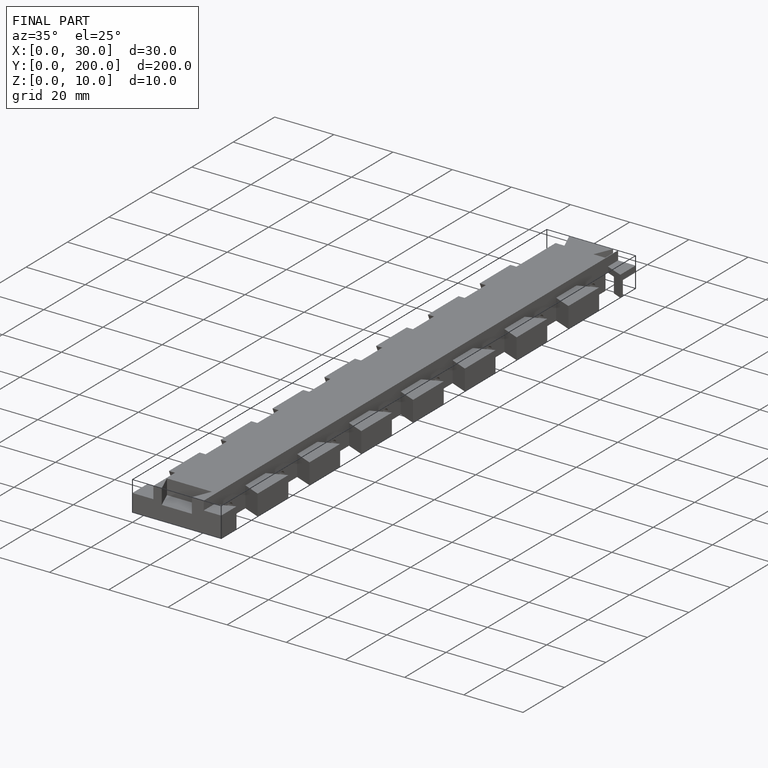
[diagram: finished part — iso view with bounding-box wireframe]
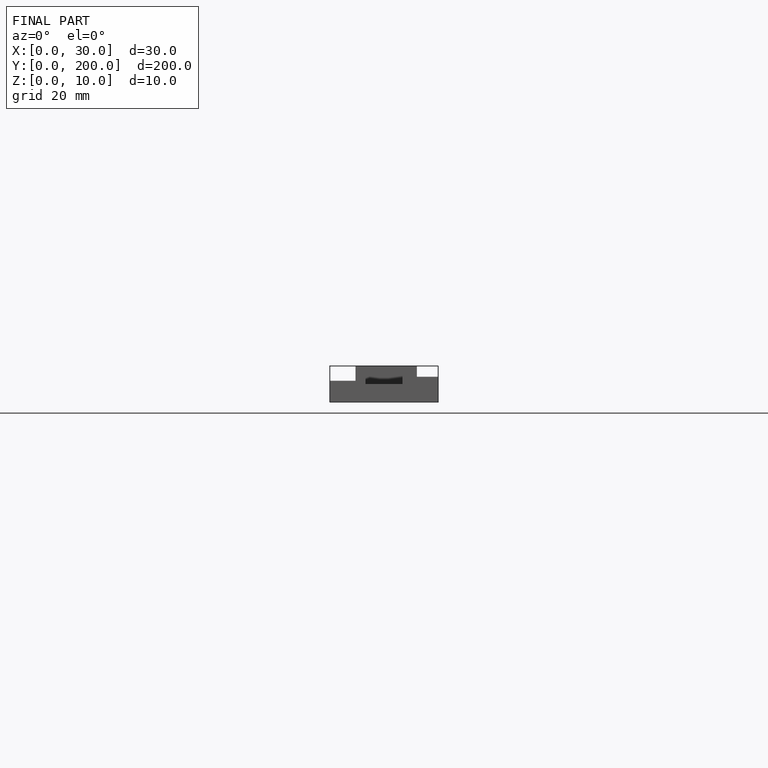
[diagram: finished part — front view with bounding-box wireframe]
